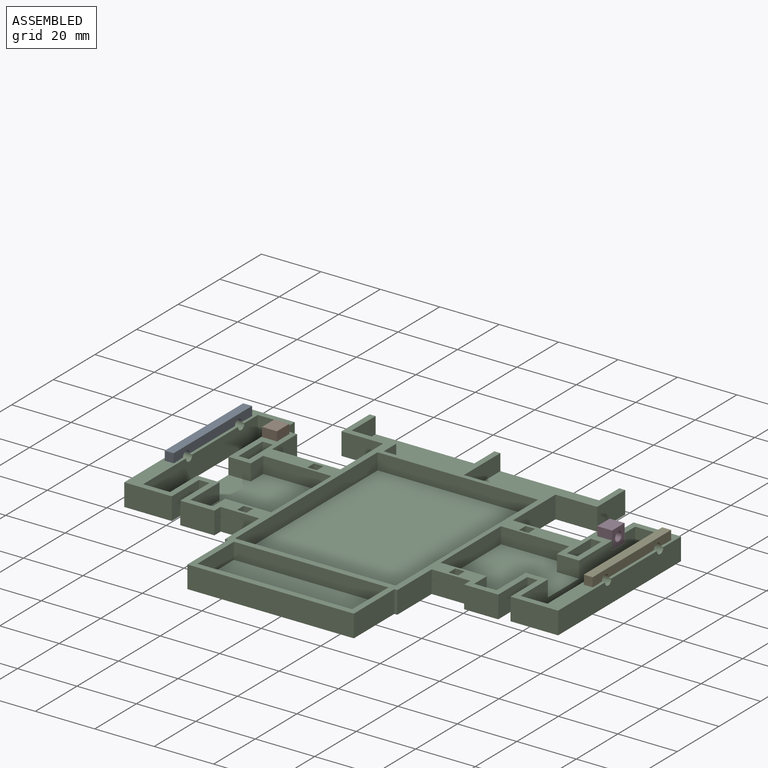
[diagram: assembled view]
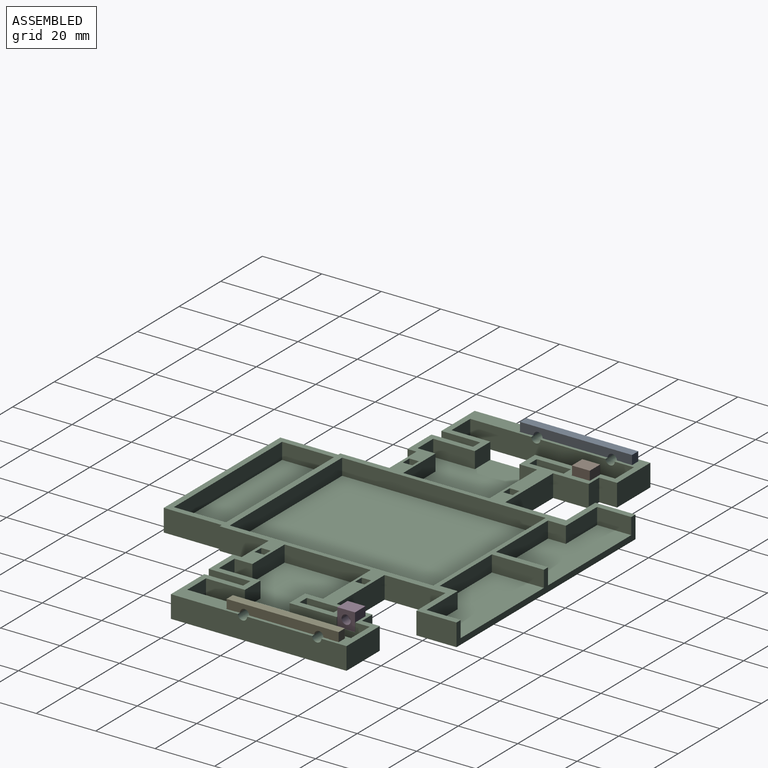
[diagram: assembled view, second angle]
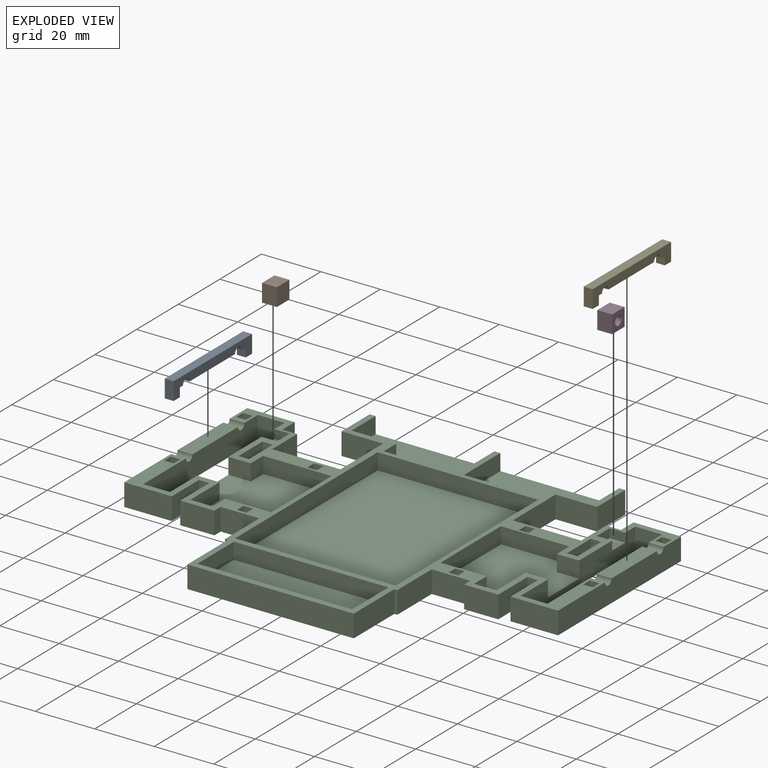
[diagram: exploded view]
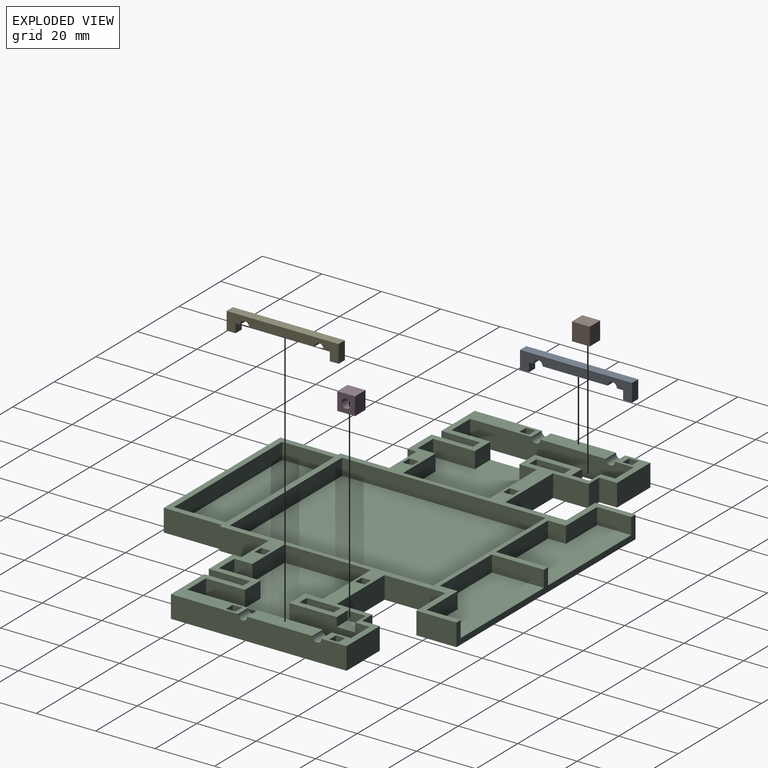
[diagram: exploded view, second angle]
ASSEMBLY  parts=5 mates=4
PART A: 14 faces, bbox 37.7x3x6 mm
  f0: plane 21.9x3mm, normal (0,0,1), area 65.7mm2, adj f2,f5,f12,f13
  f1: plane 3x1.5mm, normal (0,0,1), area 4.5mm2, adj f2,f5,f8,f12
  f2: plane 37.7x6mm, normal (0,-1,0), area 123.6mm2, adj f0,f1,f3,f4,f6,f7,f8,f9
  f3: plane 3x2.1mm, normal (0,0,1), area 6.3mm2, adj f2,f5,f10,f13
  f4: plane 6x3mm, normal (1,0,0), area 18mm2, adj f2,f5,f7,f9
  f5: plane 37.7x6mm, normal (0,1,0), area 123.6mm2, adj f0,f1,f3,f4,f6,f7,f8,f9
  f6: plane 6x3mm, normal (-1,0,0), area 18mm2, adj f2,f5,f7,f11
  f7: plane 37.7x3mm, normal (0,0,-1), area 113.1mm2, adj f2,f4,f5,f6
  f8: plane 3x3mm, normal (-1,0,0), area 9mm2, adj f1,f2,f5,f9
  f9: plane 3x3mm, normal (0,0,1), area 9mm2, adj f2,f4,f5,f8
  f10: plane 3x3mm, normal (1,0,0), area 9mm2, adj f2,f3,f5,f11
  f11: plane 3x3mm, normal (0,0,1), area 9mm2, adj f2,f5,f6,f10
  f12: cylinder r=1.55mm len=3.1mm, axis (0,1,0), area 14.6mm2, adj f0,f1,f2,f5
  f13: cylinder r=1.55mm len=3.1mm, axis (0,1,0), area 14.6mm2, adj f0,f2,f3,f5
PART B: 8 faces, bbox 6x6x5 mm
  f0: plane 6x5mm, normal (1,0,0), area 30mm2, adj f1,f3,f4,f6
  f1: plane 6x5mm, normal (0,1,0), area 30mm2, adj f0,f2,f4,f6
  f2: plane 6x5mm, normal (-1,0,0), area 30mm2, adj f1,f3,f4,f6
  f3: plane 6x5mm, normal (0,-1,0), area 30mm2, adj f0,f2,f4,f6
  f4: plane 6x6mm, normal (0,0,-1), area 36mm2, adj f0,f1,f2,f3
  f5: cylinder r=1.55mm len=3.1mm, axis (0,0,-1), area 29.2mm2, adj f6,f7
  f6: plane 6x6mm, normal (0,0,1), area 28.5mm2, adj f0,f1,f2,f3,f5
  f7: plane 3.1x3.1mm, normal (0,0,1), area 7.5mm2, adj f5
PART C: 154 faces, bbox 146x109x7.5 mm
  f0: plane 146x109mm, normal (0,0,1), area 1870.5mm2, adj f2,f4,f5,f6,f7,f8,f9,f10
  f1: plane 146x109mm, normal (0,0,-1), area 9775.9mm2, adj f2,f4,f5,f6,f12,f13,f14,f23
  f2: plane 55.1x7.5mm, normal (1,0,0), area 312.1mm2, adj f0,f1,f27,f79,f87,f96,f97,f98
  f3: plane 21.9x5mm, normal (0,0,1), area 109.5mm2, adj f4,f5,f91,f92
  f4: plane 59.1x7.5mm, normal (-1,0,0), area 435.7mm2, adj f0,f1,f3,f91,f92,f144,f151
  f5: plane 55.1x7.5mm, normal (1,0,0), area 405.7mm2, adj f0,f1,f3,f91,f92,f146,f153
  f6: plane 55.1x7.5mm, normal (-1,0,0), area 405.7mm2, adj f0,f1,f82,f89,f90,f145,f152
  f7: plane 52x5.5mm, normal (0,1,0), area 286mm2, adj f0,f8,f81,f84
  f8: plane 17.5x5.5mm, normal (1,0,0), area 96.2mm2, adj f0,f7,f9,f84
  f9: plane 52x5.5mm, normal (0,-1,0), area 286mm2, adj f0,f8,f81,f84
  f10: plane 54x5.5mm, normal (0,1,0), area 297mm2, adj f0,f11,f76,f83
  f11: plane 68.5x5.5mm, normal (1,0,0), area 376.8mm2, adj f0,f10,f83,f149
  f12: plane 7.5x3.5mm, normal (0,-1,0), area 26.3mm2, adj f0,f1,f13,f77
  f13: plane 11.5x7.5mm, normal (-1,0,0), area 86.2mm2, adj f0,f1,f12,f14
  f14: plane 7.5x3.5mm, normal (0,1,0), area 26.3mm2, adj f0,f1,f13,f77
  f15: plane 7.5x5.5mm, normal (0,-1,0), area 41.2mm2, adj f0,f16,f23,f88
  f16: plane 6x5.5mm, normal (1,0,0), area 33mm2, adj f0,f15,f17,f88
  f17: plane 23x5.5mm, normal (0,-1,0), area 126.5mm2, adj f0,f16,f88,f147
  f18: plane 15.5x5.5mm, normal (0,1,0), area 85.2mm2, adj f0,f19,f88,f147
  f19: plane 6x5.5mm, normal (-1,0,0), area 33mm2, adj f0,f18,f20,f88
  f20: plane 7.5x5.5mm, normal (0,1,0), area 41.2mm2, adj f0,f19,f21,f88
  f21: plane 14x5.5mm, normal (1,0,0), area 77mm2, adj f0,f20,f22,f88
  f22: plane 7.5x5.5mm, normal (0,1,0), area 41.2mm2, adj f0,f21,f23,f88
  f23: plane 55.1x7.5mm, normal (-1,0,0), area 312.1mm2, adj f0,f1,f15,f22,f88,f99,f101,f102
  f24: plane 11.5x7.5mm, normal (1,0,0), area 86.2mm2, adj f0,f1,f25,f78
  f25: plane 7.5x3.5mm, normal (0,-1,0), area 26.3mm2, adj f0,f1,f24,f26
  f26: plane 11.5x7.5mm, normal (-1,0,0), area 86.2mm2, adj f0,f1,f25,f78
  f27: plane 7.5x5.5mm, normal (0,1,0), area 41.2mm2, adj f0,f2,f28,f87
  f28: plane 14x5.5mm, normal (-1,0,0), area 77mm2, adj f0,f27,f29,f87
  f29: plane 7.5x5.5mm, normal (0,1,0), area 41.2mm2, adj f0,f28,f30,f87
  f30: plane 6x5.5mm, normal (1,0,0), area 33mm2, adj f0,f29,f31,f87
  f31: plane 15.5x5.5mm, normal (0,1,0), area 85.2mm2, adj f0,f30,f87,f148
  f32: plane 23x5.5mm, normal (0,-1,0), area 126.5mm2, adj f0,f33,f87,f148
  f33: plane 6x5.5mm, normal (-1,0,0), area 33mm2, adj f0,f32,f79,f87
  f34: plane 7.5x6mm, normal (-1,0,0), area 45mm2, adj f0,f1,f93,f150
  f35: plane 12x7.5mm, normal (-1,0,0), area 90mm2, adj f0,f1,f36,f93
  f36: plane 23x7.5mm, normal (0,1,0), area 172.5mm2, adj f0,f1,f35,f37
  f37: plane 20.5x7.5mm, normal (1,0,0), area 153.7mm2, adj f0,f1,f36,f38
  f38: plane 14x7.5mm, normal (0,-1,0), area 105mm2, adj f0,f1,f37,f39
  f39: plane 13.5x7.5mm, normal (1,0,0), area 101.2mm2, adj f0,f1,f38,f40
  f40: plane 86x7.5mm, normal (0,1,0), area 205mm2, adj f0,f1,f39,f41,f45,f46,f50,f51
  f41: plane 11.5x5.5mm, normal (-1,0,0), area 63.2mm2, adj f0,f40,f42,f85
  f42: plane 15x5.5mm, normal (0,1,0), area 82.5mm2, adj f0,f41,f43,f85
  f43: plane 6x5.5mm, normal (-1,0,0), area 33mm2, adj f0,f42,f44,f85
  f44: plane 25x5.5mm, normal (0,1,0), area 137.5mm2, adj f0,f43,f45,f85
  f45: plane 17.5x5.5mm, normal (1,0,0), area 96.2mm2, adj f0,f40,f44,f85
  f46: plane 17.5x5.5mm, normal (-1,0,0), area 96.2mm2, adj f0,f40,f47,f86
  f47: plane 25x5.5mm, normal (0,1,0), area 137.5mm2, adj f0,f46,f48,f86
  f48: plane 6x5.5mm, normal (1,0,0), area 33mm2, adj f0,f47,f49,f86
  f49: plane 15x5.5mm, normal (0,1,0), area 82.5mm2, adj f0,f48,f50,f86
  f50: plane 11.5x5.5mm, normal (1,0,0), area 63.2mm2, adj f0,f40,f49,f86
  f51: plane 13.5x7.5mm, normal (-1,0,0), area 101.2mm2, adj f0,f1,f40,f52
  f52: plane 14x7.5mm, normal (0,-1,0), area 105mm2, adj f0,f1,f51,f53
  f53: plane 20.5x7.5mm, normal (-1,0,0), area 153.8mm2, adj f0,f1,f52,f54
  f54: plane 23x7.5mm, normal (0,1,0), area 172.5mm2, adj f0,f1,f53,f55
  f55: plane 12x7.5mm, normal (1,0,0), area 90mm2, adj f0,f1,f54,f94
  f56: plane 7.5x6mm, normal (1,0,0), area 45mm2, adj f0,f1,f94,f151
  f57: plane 13.1x7.5mm, normal (1,0,0), area 98.2mm2, adj f0,f1,f58,f144
  f58: plane 7.5x3.5mm, normal (0,-1,0), area 26.3mm2, adj f0,f1,f57,f59
  f59: plane 14x7.5mm, normal (-1,0,0), area 105mm2, adj f0,f1,f58,f60
  f60: plane 11.5x7.5mm, normal (0,-1,0), area 86.2mm2, adj f0,f1,f59,f61
  f61: plane 7.5x3mm, normal (1,0,0), area 22.5mm2, adj f0,f1,f60,f62
  f62: plane 13x7.5mm, normal (0,-1,0), area 97.5mm2, adj f0,f1,f61,f63
  f63: plane 16.5x7.5mm, normal (-1,0,0), area 123.7mm2, adj f0,f1,f62,f64
  f64: plane 7.5x1mm, normal (0,-1,0), area 7.5mm2, adj f0,f1,f63,f65
  f65: plane 19.5x7.5mm, normal (-1,0,0), area 146.3mm2, adj f0,f1,f64,f66
  f66: plane 56x7.5mm, normal (0,-1,0), area 420mm2, adj f0,f1,f65,f67
  f67: plane 19.5x7.5mm, normal (1,0,0), area 146.3mm2, adj f0,f1,f66,f68
  f68: plane 7.5x1mm, normal (0,-1,0), area 7.5mm2, adj f0,f1,f67,f69
  f69: plane 16.5x7.5mm, normal (1,0,0), area 123.7mm2, adj f0,f1,f68,f70
  f70: plane 13x7.5mm, normal (0,-1,0), area 97.5mm2, adj f0,f1,f69,f71
  f71: plane 7.5x3mm, normal (-1,0,0), area 22.5mm2, adj f0,f1,f70,f72
  f72: plane 11.5x7.5mm, normal (0,-1,0), area 86.2mm2, adj f0,f1,f71,f73
  f73: plane 14x7.5mm, normal (1,0,0), area 105mm2, adj f0,f1,f72,f74
  f74: plane 7.5x3.5mm, normal (0,-1,0), area 26.3mm2, adj f0,f1,f73,f75
  f75: plane 13.1x7.5mm, normal (-1,0,0), area 98.2mm2, adj f0,f1,f74,f143
  f76: plane 68.5x5.5mm, normal (-1,0,0), area 376.8mm2, adj f0,f10,f83,f149
  f77: plane 11.5x7.5mm, normal (1,0,0), area 86.2mm2, adj f0,f1,f12,f14
  f78: plane 7.5x3.5mm, normal (0,1,0), area 26.3mm2, adj f0,f1,f24,f26
  f79: plane 7.5x5.5mm, normal (0,-1,0), area 41.2mm2, adj f0,f2,f33,f87
  f80: plane 59.1x7.5mm, normal (1,0,0), area 435.7mm2, adj f0,f1,f82,f89,f90,f143,f150
  f81: plane 17.5x5.5mm, normal (-1,0,0), area 96.2mm2, adj f0,f7,f9,f84
  f82: plane 21.9x5mm, normal (0,0,1), area 109.5mm2, adj f6,f80,f89,f90
  f83: plane 68.5x54mm, normal (0,0,1), area 3699mm2, adj f10,f11,f76,f149
  f84: plane 52x17.5mm, normal (0,0,1), area 910mm2, adj f7,f8,f9,f81
  f85: plane 40x17.5mm, normal (0,0,1), area 610mm2, adj f40,f41,f42,f43,f44,f45
  f86: plane 40x17.5mm, normal (0,0,1), area 610mm2, adj f40,f46,f47,f48,f49,f50
  f87: plane 35x30.5mm, normal (0,0,1), area 824.5mm2, adj f2,f27,f28,f29,f30,f31,f32,f33
  f88: plane 35x30.5mm, normal (0,0,1), area 824.5mm2, adj f15,f16,f17,f18,f19,f20,f21,f22
  f89: cylinder r=1.55mm len=5mm, axis (1,0,0), area 24.3mm2, adj f0,f6,f80,f82
  f90: cylinder r=1.55mm len=5mm, axis (1,0,0), area 24.3mm2, adj f0,f6,f80,f82
  f91: cylinder r=1.55mm len=5mm, axis (-1,0,0), area 24.3mm2, adj f0,f3,f4,f5
  f92: cylinder r=1.55mm len=5mm, axis (-1,0,0), area 24.3mm2, adj f0,f3,f4,f5
  f93: plane 7.5x5mm, normal (0,1,0), area 37.5mm2, adj f0,f1,f34,f35
  f94: plane 7.5x5mm, normal (0,1,0), area 37.5mm2, adj f0,f1,f55,f56
  f95: plane 6.2x3mm, normal (1,0,0), area 18.6mm2, adj f0,f96,f97,f98
  f96: plane 5.2x3mm, normal (0,1,0), area 15.6mm2, adj f0,f2,f95,f98
  f97: plane 5.2x3mm, normal (0,-1,0), area 15.6mm2, adj f0,f2,f95,f98
  f98: plane 6.2x5.2mm, normal (0,0,1), area 32.2mm2, adj f2,f95,f96,f97
  f99: plane 5.2x3mm, normal (0,1,0), area 15.6mm2, adj f0,f23,f100,f102
  f100: plane 6.2x3mm, normal (-1,0,0), area 18.6mm2, adj f0,f99,f101,f102
  f101: plane 5.2x3mm, normal (0,-1,0), area 15.6mm2, adj f0,f23,f100,f102
  f102: plane 6.2x5.2mm, normal (0,0,1), area 32.2mm2, adj f23,f99,f100,f101
  f103: plane 3.2x3mm, normal (0,1,0), area 9.6mm2, adj f0,f104,f106,f107
  f104: plane 3.2x3mm, normal (-1,0,0), area 9.6mm2, adj f0,f103,f105,f107
  f105: plane 3.2x3mm, normal (0,-1,0), area 9.6mm2, adj f0,f104,f106,f107
  f106: plane 3.2x3mm, normal (1,0,0), area 9.6mm2, adj f0,f103,f105,f107
  f107: plane 3.2x3.2mm, normal (0,0,1), area 10.2mm2, adj f103,f104,f105,f106
  f108: plane 3.2x3mm, normal (1,0,0), area 9.6mm2, adj f0,f109,f111,f112
  f109: plane 3.2x3mm, normal (0,1,0), area 9.6mm2, adj f0,f108,f110,f112
  f110: plane 3.2x3mm, normal (-1,0,0), area 9.6mm2, adj f0,f109,f111,f112
  f111: plane 3.2x3mm, normal (0,-1,0), area 9.6mm2, adj f0,f108,f110,f112
  f112: plane 3.2x3.2mm, normal (0,0,1), area 10.2mm2, adj f108,f109,f110,f111
  f113: plane 3.2x3mm, normal (1,0,0), area 9.6mm2, adj f0,f114,f116,f117
  f114: plane 3.2x3mm, normal (0,1,0), area 9.6mm2, adj f0,f113,f115,f117
  f115: plane 3.2x3mm, normal (-1,0,0), area 9.6mm2, adj f0,f114,f116,f117
  f116: plane 3.2x3mm, normal (0,-1,0), area 9.6mm2, adj f0,f113,f115,f117
  f117: plane 3.2x3.2mm, normal (0,0,1), area 10.2mm2, adj f113,f114,f115,f116
  f118: plane 3.2x3mm, normal (-1,0,0), area 9.6mm2, adj f0,f119,f121,f122
  f119: plane 3.2x3mm, normal (0,-1,0), area 9.6mm2, adj f0,f118,f120,f122
  f120: plane 3.2x3mm, normal (1,0,0), area 9.6mm2, adj f0,f119,f121,f122
  f121: plane 3.2x3mm, normal (0,1,0), area 9.6mm2, adj f0,f118,f120,f122
  f122: plane 3.2x3.2mm, normal (0,0,1), area 10.2mm2, adj f118,f119,f120,f121
  f123: plane 3.2x3mm, normal (1,0,0), area 9.6mm2, adj f0,f124,f126,f127
  f124: plane 3.2x3mm, normal (0,1,0), area 9.6mm2, adj f0,f123,f125,f127
  f125: plane 3.2x3mm, normal (-1,0,0), area 9.6mm2, adj f0,f124,f126,f127
  f126: plane 3.2x3mm, normal (0,-1,0), area 9.6mm2, adj f0,f123,f125,f127
  f127: plane 3.2x3.2mm, normal (0,0,1), area 10.2mm2, adj f123,f124,f125,f126
  f128: plane 3.2x3mm, normal (0,-1,0), area 9.6mm2, adj f0,f129,f131,f132
  f129: plane 3.2x3mm, normal (1,0,0), area 9.6mm2, adj f0,f128,f130,f132
  f130: plane 3.2x3mm, normal (0,1,0), area 9.6mm2, adj f0,f129,f131,f132
  f131: plane 3.2x3mm, normal (-1,0,0), area 9.6mm2, adj f0,f128,f130,f132
  f132: plane 3.2x3.2mm, normal (0,0,1), area 10.2mm2, adj f128,f129,f130,f131
  f133: plane 3.2x3mm, normal (1,0,0), area 9.6mm2, adj f0,f134,f136,f137
  f134: plane 3.2x3mm, normal (0,1,0), area 9.6mm2, adj f0,f133,f135,f137
  f135: plane 3.2x3mm, normal (-1,0,0), area 9.6mm2, adj f0,f134,f136,f137
  f136: plane 3.2x3mm, normal (0,-1,0), area 9.6mm2, adj f0,f133,f135,f137
  f137: plane 3.2x3.2mm, normal (0,0,1), area 10.2mm2, adj f133,f134,f135,f136
  f138: plane 3.2x3mm, normal (1,0,0), area 9.6mm2, adj f0,f139,f141,f142
  f139: plane 3.2x3mm, normal (0,1,0), area 9.6mm2, adj f0,f138,f140,f142
  f140: plane 3.2x3mm, normal (-1,0,0), area 9.6mm2, adj f0,f139,f141,f142
  f141: plane 3.2x3mm, normal (0,-1,0), area 9.6mm2, adj f0,f138,f140,f142
  f142: plane 3.2x3.2mm, normal (0,0,1), area 10.2mm2, adj f138,f139,f140,f141
  f143: plane 16x7.5mm, normal (0,-1,0), area 120mm2, adj f0,f1,f75,f80
  f144: plane 16x7.5mm, normal (0,-1,0), area 120mm2, adj f0,f1,f4,f57
  f145: plane 9x7.5mm, normal (0,1,0), area 67.5mm2, adj f0,f1,f2,f6
  f146: plane 9x7.5mm, normal (0,1,0), area 67.5mm2, adj f0,f1,f5,f23
  f147: plane 29x5.5mm, normal (-1,0,0), area 159.5mm2, adj f0,f17,f18,f88
  f148: plane 29x5.5mm, normal (1,0,0), area 159.5mm2, adj f0,f31,f32,f87
  f149: plane 54x5.5mm, normal (0,-1,0), area 297mm2, adj f0,f11,f76,f83
  f150: plane 16x7.5mm, normal (0,1,0), area 120mm2, adj f0,f1,f34,f80
  f151: plane 16x7.5mm, normal (0,1,0), area 120mm2, adj f0,f1,f4,f56
  f152: plane 9x7.5mm, normal (0,-1,0), area 67.5mm2, adj f0,f1,f2,f6
  f153: plane 9x7.5mm, normal (0,-1,0), area 67.5mm2, adj f0,f1,f5,f23
PART D: same geometry as B
PART E: same geometry as A
PLACE A rot(axis=(0.71,-0.71,0),180deg) t=(5.84,-18.94,10.5)mm
PLACE B rot(axis=(0.58,-0.58,-0.58),120deg) t=(-53.9,34.76,-65.23)mm
PLACE C at identity
PLACE D rot(axis=(0,1,0),90deg) t=(53.9,-45.23,14.76)mm
PLACE E rot(axis=(0.71,-0.71,0),180deg) t=(146.84,-18.94,10.5)mm
MATE fastened D.f0 <-> C.f98  axis (0,0,-1) through (56.4,27.5,4.5)mm
MATE fastened A.f11 <-> C.f112  axis (0,0,-1) through (-70.5,32.65,4.5)mm
MATE fastened B.f3 <-> C.f102  axis (0,0,-1) through (-56.4,27.5,4.5)mm
MATE fastened E.f11 <-> C.f137  axis (0,0,-1) through (70.5,32.65,4.5)mm
